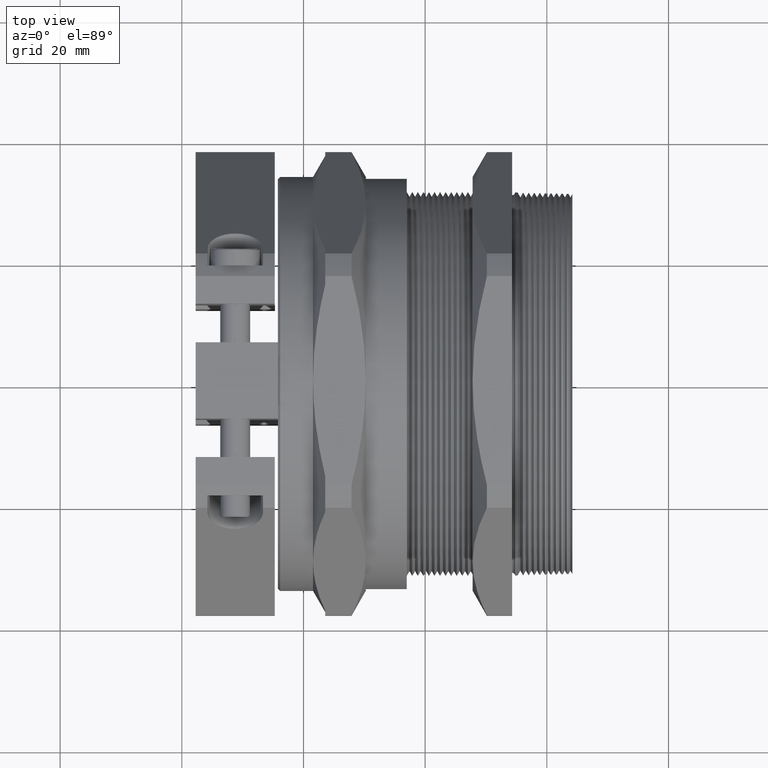
[diagram: clean part render]
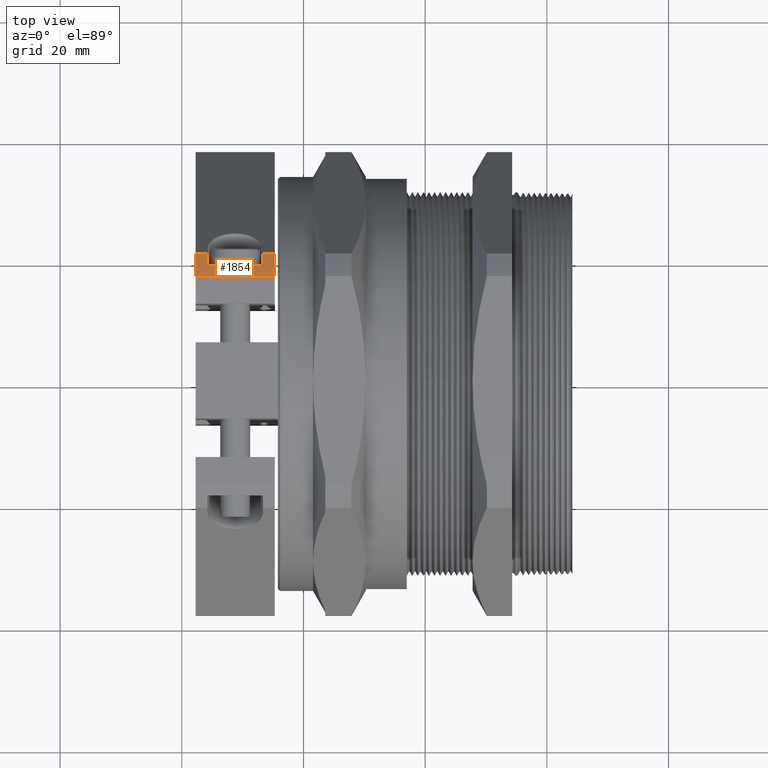
[diagram: same view with one face highlighted and labeled with its STEP entity id]
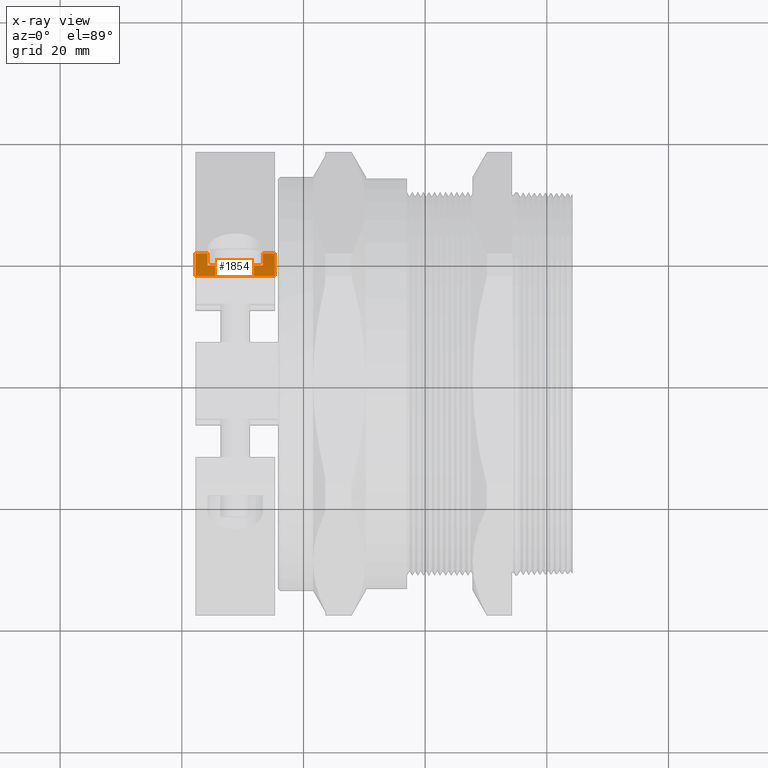
[diagram: x-ray of the same camera — body ghosted, the highlighted face saturated]
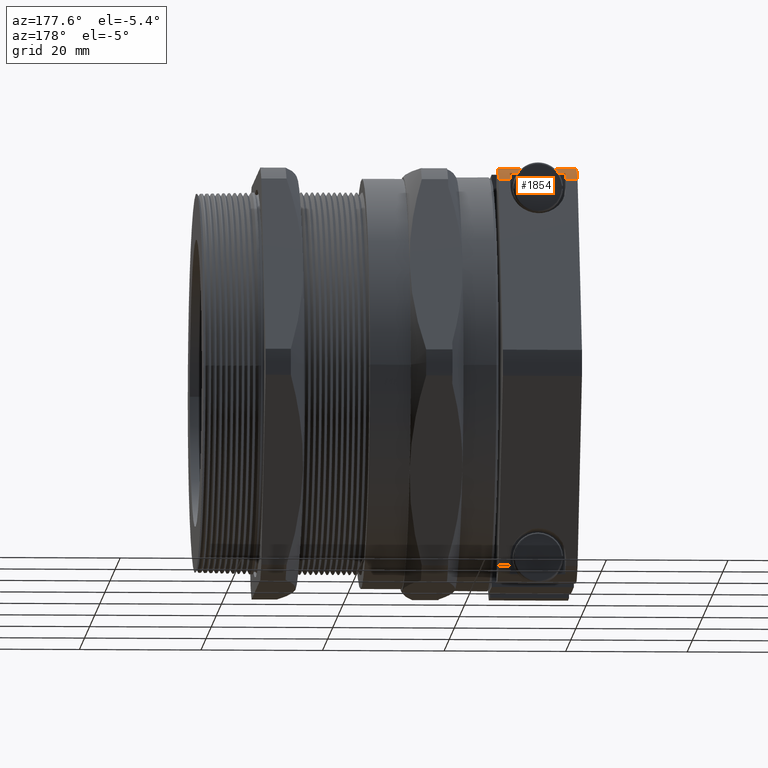
[diagram: same view with one face highlighted and labeled with its STEP entity id]
A machine part, top view. The second image highlights one B-rep face of the part: STEP entity #1854.
The next image is the same camera in x-ray: the body ghosted, the highlighted face saturated — about 0% of this face is hidden behind the body in this view.
A second angle (auxiliary view) of the same face is appended — the face is thin or edge-on in the first view.
In plain terms, the highlighted cylindrical surface (partial cylindrical patch) has radius 38.1203 mm, axis along (-1, 0, 0).
Its self-contained STEP definition (entity closure, byte-faithful):
#1693 = VERTEX_POINT ( 'NONE', #6400 ) ;
#1700 = VERTEX_POINT ( 'NONE', #6447 ) ;
#1702 = EDGE_CURVE ( 'NONE', #1735, #1700, #6446, .T. ) ;
#1735 = VERTEX_POINT ( 'NONE', #6511 ) ;
#1752 = EDGE_CURVE ( 'NONE', #1778, #1735, #6547, .T. ) ;
#1778 = VERTEX_POINT ( 'NONE', #6560 ) ;
#1780 = EDGE_CURVE ( 'NONE', #1778, #1693, #6559, .T. ) ;
#1781 = EDGE_CURVE ( 'NONE', #1861, #1782, #6614, .T. ) ;
#1782 = VERTEX_POINT ( 'NONE', #6610 ) ;
#1783 = ORIENTED_EDGE ( 'NONE', *, *, #1784, .F. ) ;
#1784 = EDGE_CURVE ( 'NONE', #1785, #1782, #6609, .T. ) ;
#1785 = VERTEX_POINT ( 'NONE', #6604 ) ;
#1786 = ORIENTED_EDGE ( 'NONE', *, *, #1787, .F. ) ;
#1787 = EDGE_CURVE ( 'NONE', #1693, #1785, #6603, .T. ) ;
#1843 = ORIENTED_EDGE ( 'NONE', *, *, #1780, .F. ) ;
#1844 = ORIENTED_EDGE ( 'NONE', *, *, #1752, .T. ) ;
#1845 = ORIENTED_EDGE ( 'NONE', *, *, #1702, .T. ) ;
#1854 = ADVANCED_FACE ( 'NONE', ( #6712 ), #6711, .T. ) ;
#1855 = EDGE_LOOP ( 'NONE', ( #1856, #1859, #1862, #1783, #1786, #1843, #1844, #1845 ) ) ;
#1856 = ORIENTED_EDGE ( 'NONE', *, *, #1857, .F. ) ;
#1857 = EDGE_CURVE ( 'NONE', #1858, #1700, #6710, .T. ) ;
#1858 = VERTEX_POINT ( 'NONE', #6702 ) ;
#1859 = ORIENTED_EDGE ( 'NONE', *, *, #1860, .F. ) ;
#1860 = EDGE_CURVE ( 'NONE', #1861, #1858, #6701, .T. ) ;
#1861 = VERTEX_POINT ( 'NONE', #6757 ) ;
#1862 = ORIENTED_EDGE ( 'NONE', *, *, #1781, .T. ) ;
#6400 = CARTESIAN_POINT ( 'NONE',  ( -1.485749999999999900, 0.8225388993649326300, 1.255320835098154000 ) ) ;
#6442 = DIRECTION ( 'NONE',  ( 0.0000000000000000000, -1.000000000000000000, 0.0000000000000000000 ) ) ;
#6443 = DIRECTION ( 'NONE',  ( -1.000000000000000000, 3.248221276105107800E-019, 0.0000000000000000000 ) ) ;
#6444 = CARTESIAN_POINT ( 'NONE',  ( -0.9732499999999998400, 1.358250442850350200E-018, 0.0000000000000000000 ) ) ;
#6445 = AXIS2_PLACEMENT_3D ( 'NONE', #6444, #6443, #6442 ) ;
#6446 = CIRCLE ( 'NONE', #6445, 1.500799999999999900 ) ;
#6447 = CARTESIAN_POINT ( 'NONE',  ( -0.9732499999999998400, 0.8225388993649327400, 1.255320835098153700 ) ) ;
#6511 = CARTESIAN_POINT ( 'NONE',  ( -0.9732499999999998400, 0.6758702834124307200, 1.340000000000000100 ) ) ;
#6544 = DIRECTION ( 'NONE',  ( 1.000000000000000000, -3.248221276105107800E-019, 0.0000000000000000000 ) ) ;
#6545 = VECTOR ( 'NONE', #6544, 39.37007874015748100 ) ;
#6546 = CARTESIAN_POINT ( 'NONE',  ( -5.773102463107272300, 0.6758702834124307200, 1.340000000000000100 ) ) ;
#6547 = LINE ( 'NONE', #6546, #6545 ) ;
#6556 = DIRECTION ( 'NONE',  ( -1.000000000000000000, 3.248221276105107800E-019, 0.0000000000000000000 ) ) ;
#6557 = CARTESIAN_POINT ( 'NONE',  ( -1.485749999999999900, 1.524721783250737200E-018, 0.0000000000000000000 ) ) ;
#6558 = AXIS2_PLACEMENT_3D ( 'NONE', #6557, #6556, #6615 ) ;
#6559 = CIRCLE ( 'NONE', #6558, 1.500799999999999900 ) ;
#6560 = CARTESIAN_POINT ( 'NONE',  ( -1.485749999999999900, 0.6758702834124307200, 1.340000000000000100 ) ) ;
#6600 = DIRECTION ( 'NONE',  ( 1.000000000000000000, -3.248221276105107800E-019, 0.0000000000000000000 ) ) ;
#6601 = VECTOR ( 'NONE', #6600, 39.37007874015748100 ) ;
#6602 = CARTESIAN_POINT ( 'NONE',  ( -5.773102463107272300, 0.8225388993649327400, 1.255320835098153700 ) ) ;
#6603 = LINE ( 'NONE', #6602, #6601 ) ;
#6604 = CARTESIAN_POINT ( 'NONE',  ( -1.408874999999999900, 0.8225388993649324100, 1.255320835098153300 ) ) ;
#6605 = DIRECTION ( 'NONE',  ( 2.002287308789105300E-015, 0.0000000000000000000, 1.000000000000000000 ) ) ;
#6606 = DIRECTION ( 'NONE',  ( 1.000000000000000000, 0.0000000000000000000, -1.998913166095802500E-015 ) ) ;
#6607 = CARTESIAN_POINT ( 'NONE',  ( -1.408875000000002300, -1.499751082190679600E-018, 0.0000000000000000000 ) ) ;
#6608 = AXIS2_PLACEMENT_3D ( 'NONE', #6607, #6606, #6605 ) ;
#6609 = CIRCLE ( 'NONE', #6608, 1.500799999999999900 ) ;
#6610 = CARTESIAN_POINT ( 'NONE',  ( -1.408874999999999700, 0.7439999999999999900, 1.303405017636498000 ) ) ;
#6611 = DIRECTION ( 'NONE',  ( -1.000000000000000000, -3.248221276105107800E-019, 0.0000000000000000000 ) ) ;
#6612 = VECTOR ( 'NONE', #6611, 39.37007874015748100 ) ;
#6613 = CARTESIAN_POINT ( 'NONE',  ( -3.208270676691729500, 0.7439999999999999900, 1.303405017636498000 ) ) ;
#6614 = LINE ( 'NONE', #6613, #6612 ) ;
#6615 = DIRECTION ( 'NONE',  ( 0.0000000000000000000, -1.000000000000000000, 0.0000000000000000000 ) ) ;
#6698 = DIRECTION ( 'NONE',  ( -1.000000000000000000, 0.0000000000000000000, -1.998913166095802500E-015 ) ) ;
#6699 = CARTESIAN_POINT ( 'NONE',  ( -1.050124999999997300, -1.383221143910407600E-018, 0.0000000000000000000 ) ) ;
#6700 = AXIS2_PLACEMENT_3D ( 'NONE', #6699, #6698, #6758 ) ;
#6701 = CIRCLE ( 'NONE', #6700, 1.500799999999999900 ) ;
#6702 = CARTESIAN_POINT ( 'NONE',  ( -1.050124999999999800, 0.8225388993649324100, 1.255320835098153300 ) ) ;
#6703 = DIRECTION ( 'NONE',  ( 1.000000000000000000, -3.248221276105107800E-019, 0.0000000000000000000 ) ) ;
#6704 = VECTOR ( 'NONE', #6703, 39.37007874015748100 ) ;
#6705 = CARTESIAN_POINT ( 'NONE',  ( -5.773102463107272300, 0.8225388993649327400, 1.255320835098153700 ) ) ;
#6706 = DIRECTION ( 'NONE',  ( 0.0000000000000000000, -1.000000000000000000, 0.0000000000000000000 ) ) ;
#6707 = DIRECTION ( 'NONE',  ( -1.000000000000000000, 3.248221276105107800E-019, 0.0000000000000000000 ) ) ;
#6708 = CARTESIAN_POINT ( 'NONE',  ( -3.208270676691729500, 2.084234614306841300E-018, 0.0000000000000000000 ) ) ;
#6709 = AXIS2_PLACEMENT_3D ( 'NONE', #6708, #6707, #6706 ) ;
#6710 = LINE ( 'NONE', #6705, #6704 ) ;
#6711 = CYLINDRICAL_SURFACE ( 'NONE', #6709, 1.500799999999999900 ) ;
#6712 = FACE_OUTER_BOUND ( 'NONE', #1855, .T. ) ;
#6757 = CARTESIAN_POINT ( 'NONE',  ( -1.050124999999999800, 0.7439999999999999900, 1.303405017636498000 ) ) ;
#6758 = DIRECTION ( 'NONE',  ( 2.002287308789105300E-015, 0.0000000000000000000, -1.000000000000000000 ) ) ;